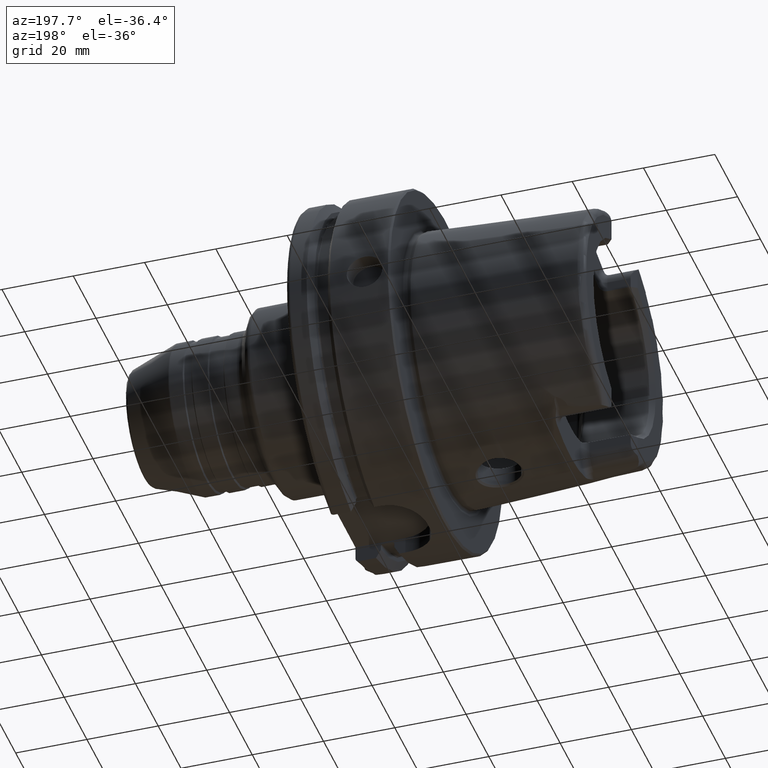
[diagram: clean part render]
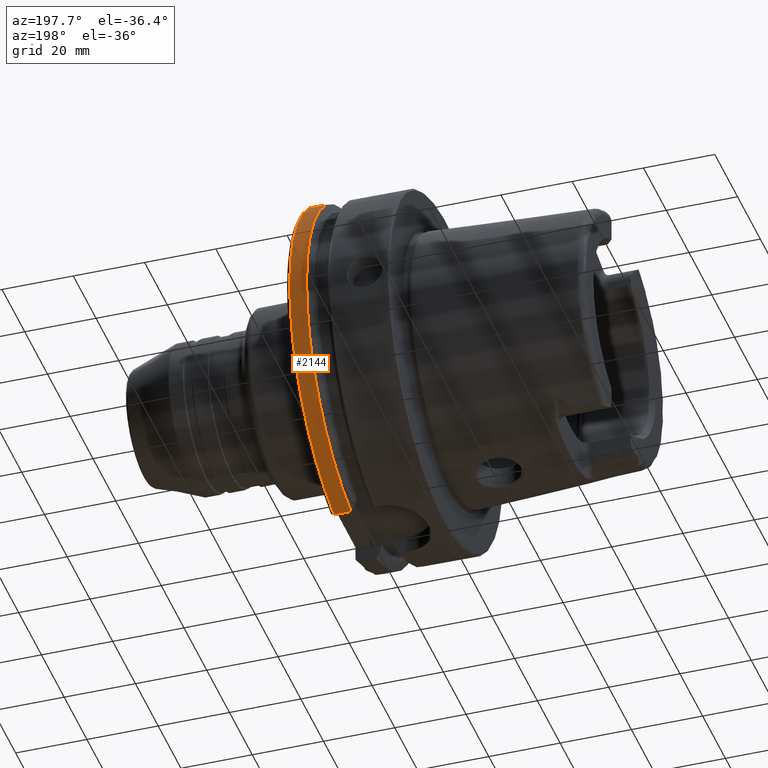
[diagram: same view with one face highlighted and labeled with its STEP entity id]
A machine part, auxiliary view. The second image highlights one B-rep face of the part: STEP entity #2144.
In plain terms, the highlighted cylindrical surface (partial cylindrical patch) has radius 50 mm, axis along (1, 0, 0).
Its self-contained STEP definition (entity closure, byte-faithful):
#256=FACE_OUTER_BOUND('',#389,.T.);
#389=EDGE_LOOP('',(#1758,#1759,#1760,#1761));
#526=LINE('',#4388,#637);
#536=LINE('',#4470,#647);
#637=VECTOR('',#2883,10.);
#647=VECTOR('',#2919,10.);
#761=CIRCLE('',#2385,50.);
#763=CIRCLE('',#2389,50.);
#974=VERTEX_POINT('',#4338);
#982=VERTEX_POINT('',#4384);
#994=VERTEX_POINT('',#4453);
#995=VERTEX_POINT('',#4468);
#1256=EDGE_CURVE('',#974,#982,#526,.T.);
#1273=EDGE_CURVE('',#974,#994,#761,.T.);
#1276=EDGE_CURVE('',#982,#995,#763,.T.);
#1277=EDGE_CURVE('',#995,#994,#536,.T.);
#1758=ORIENTED_EDGE('',*,*,#1256,.T.);
#1759=ORIENTED_EDGE('',*,*,#1276,.T.);
#1760=ORIENTED_EDGE('',*,*,#1277,.T.);
#1761=ORIENTED_EDGE('',*,*,#1273,.F.);
#2060=CYLINDRICAL_SURFACE('',#2388,50.);
#2144=ADVANCED_FACE('',(#256),#2060,.T.);
#2385=AXIS2_PLACEMENT_3D('',#4454,#2909,#2910);
#2388=AXIS2_PLACEMENT_3D('',#4467,#2915,#2916);
#2389=AXIS2_PLACEMENT_3D('',#4469,#2917,#2918);
#2883=DIRECTION('',(-1.,0.,0.));
#2909=DIRECTION('center_axis',(1.,0.,0.));
#2910=DIRECTION('ref_axis',(0.,0.,-1.));
#2915=DIRECTION('center_axis',(1.,0.,0.));
#2916=DIRECTION('ref_axis',(0.,1.,0.));
#2917=DIRECTION('center_axis',(1.,0.,0.));
#2918=DIRECTION('ref_axis',(0.,0.,-1.));
#2919=DIRECTION('',(1.,0.,0.));
#4338=CARTESIAN_POINT('',(28.,11.,-48.7749935930288));
#4384=CARTESIAN_POINT('',(23.2620290209214,11.,-48.7749935930288));
#4388=CARTESIAN_POINT('',(25.6310145104607,11.,-48.7749935930288));
#4453=CARTESIAN_POINT('',(28.,10.,48.9897948556636));
#4454=CARTESIAN_POINT('Origin',(28.,0.,0.));
#4467=CARTESIAN_POINT('Origin',(25.6310145104607,0.,0.));
#4468=CARTESIAN_POINT('',(23.2620290209214,10.,48.9897948556636));
#4469=CARTESIAN_POINT('Origin',(23.2620290209214,0.,0.));
#4470=CARTESIAN_POINT('',(25.6310145104607,10.,48.9897948556636));